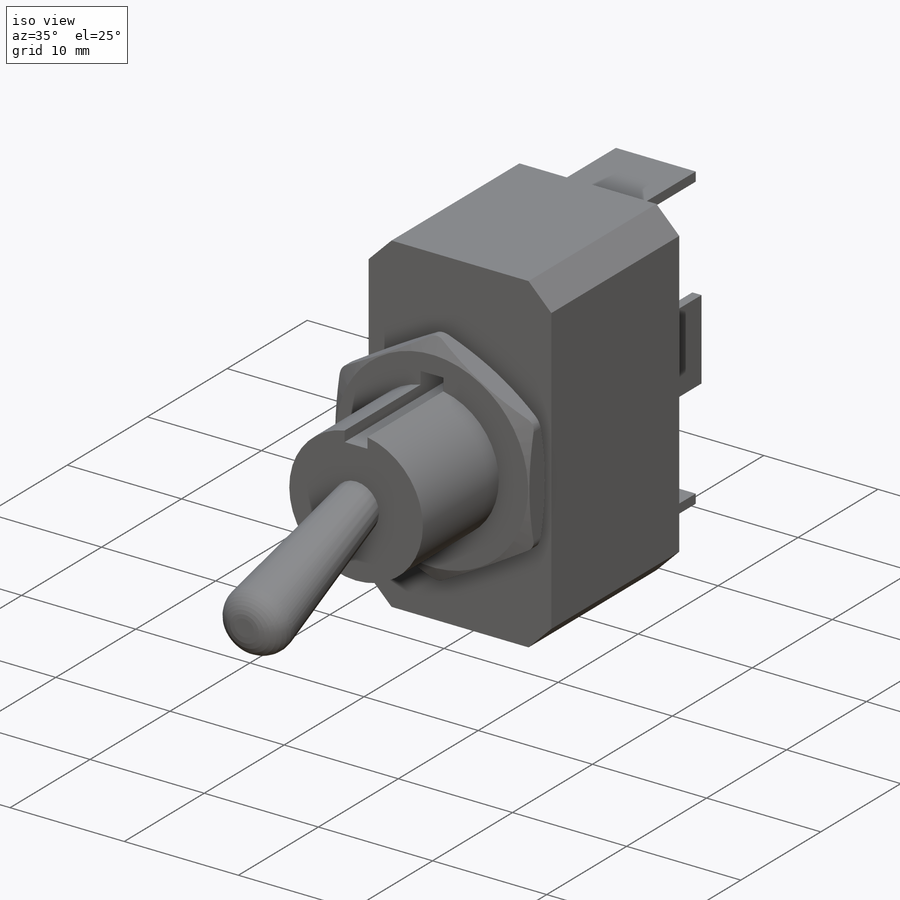
[diagram: iso view]
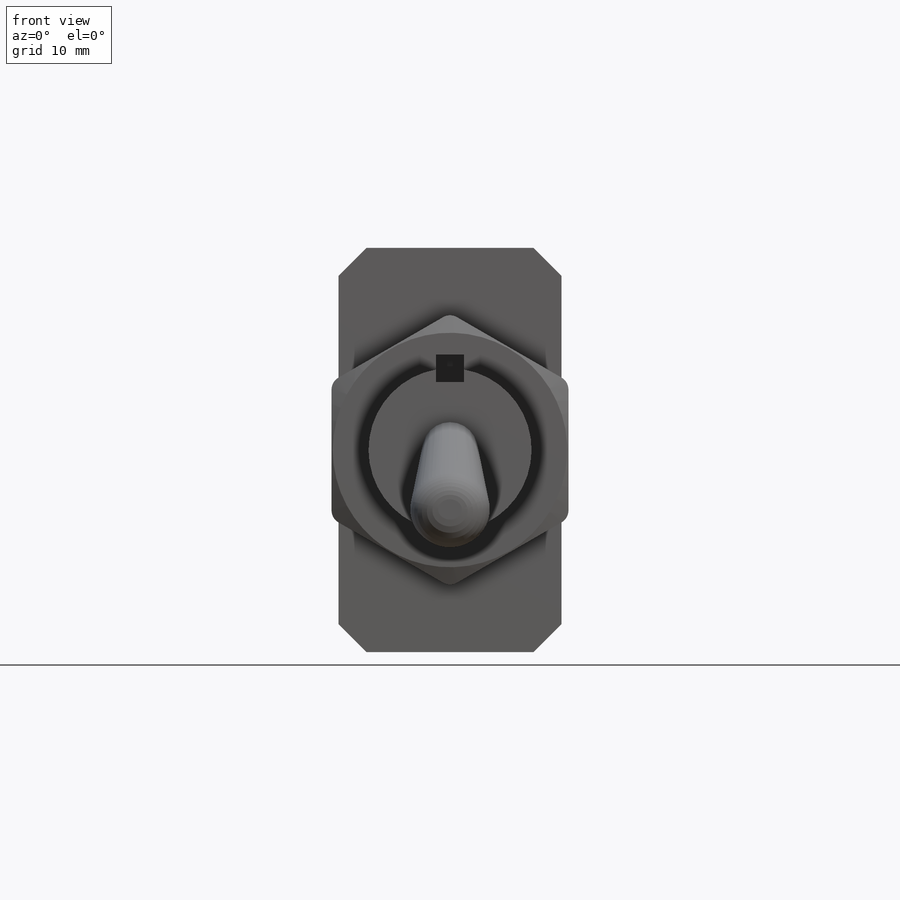
[diagram: front view]
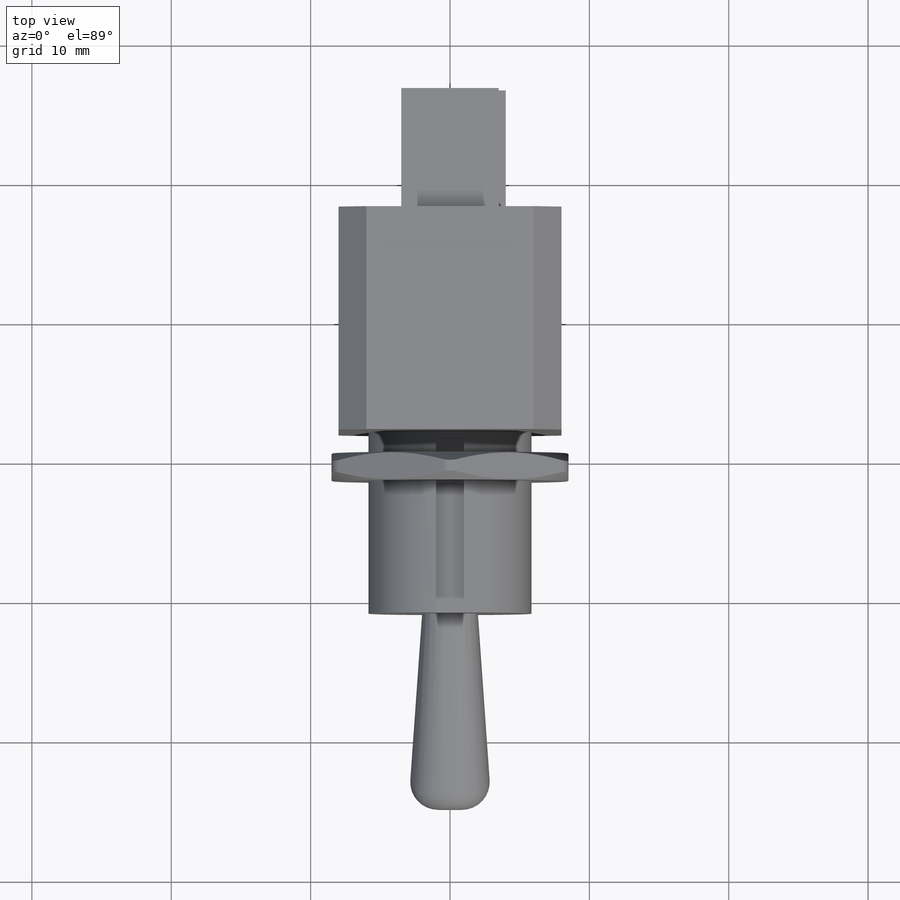
[diagram: top view]
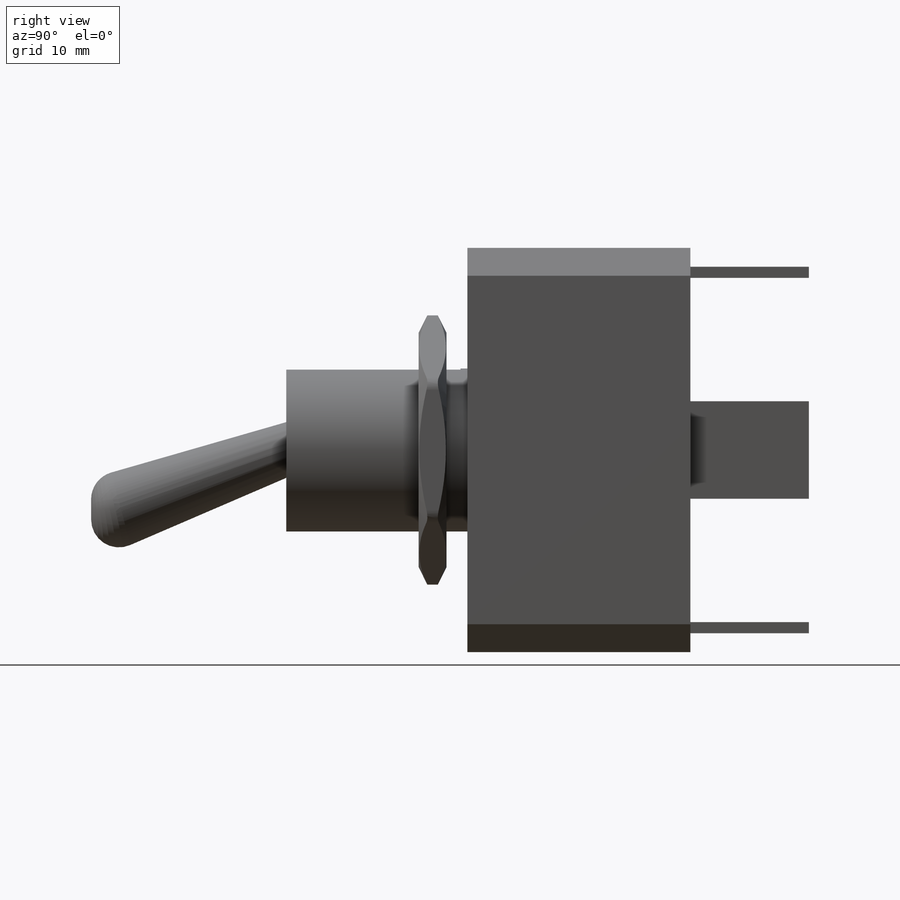
[diagram: right view]
SOLIDWORKS PART (.sldprt)
format: sldprt  version: not decoded by parser v0  size: 389,632 bytes
history: native  units: mm
features: sketch x8, extrude x4, plane x2, fillet x2, material x1, chamfer x1, cut_revolve x1, cut_extrude x1 (+12 scaffold rows collapsed)
feature tree (32):
  scaffold x12  (default folders/planes/origin — collapsed)
  material  "Liga 1060"
  sketch  "Sketch1"  dims[D1=16.0mm D2=29.0mm]
  extrude  "Extrude1"  Depth=16mm
  sketch  "Sketch2"  dims[D1=11.7mm]
  extrude  "Extrude2"  Depth=13mm
  chamfer  "Chamfer1"  Distance=2mm Angle=45deg
  plane  "Plane1"  Offset=35mm
  sketch  "Sketch3"  dims[D1=6.0mm]
  sketch  "Sketch4"  dims[D1=4.0mm]
  fillet  "Fillet1"  Radius=2mm
  plane  "Plane2"  Offset=9.5mm
  sketch  "Sketch5"  dims[D1=17.0mm]
  extrude  "Extrude3"  Depth=2mm
  sketch  "Sketch6"  dims[D1=~0.198731mm D2=0.2mm D3=1.0mm D4=2.0mm D5=0.2mm D6=2.0mm D7=0.2mm D8=1.0mm]
  cut_revolve  "Cut-Revolve1"  Angle=360deg
  fillet  "Fillet2"  Radius=1mm
  sketch  "Esboço1"  dims[D1=7.0mm D2=0.8mm D3=1.35mm D4=7.0mm D5=0.8mm D6=4.0mm]
  extrude  "Ressalto-extrusão1"  Depth=8.5mm
  sketch  "Esboço2"  dims[c1.D1=2.0mm c1.D2=1.0mm c2.D1=2.0mm c2.D2=2.0mm]
  cut_extrude  "Corte-extrusão2"  Depth=12.5mm
decode coverage: 17 of 17 modeling features carry decoded parameters
note: ~ marks probable driven/reference dimensions
note: suppression state not decoded; provenance and decode notes live in map.json
